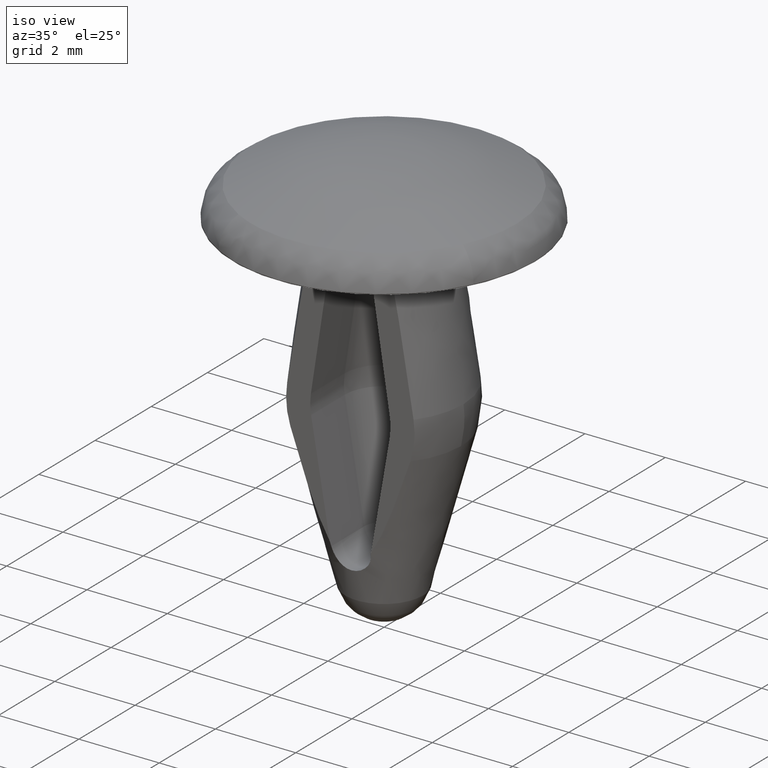
[diagram: clean part render]
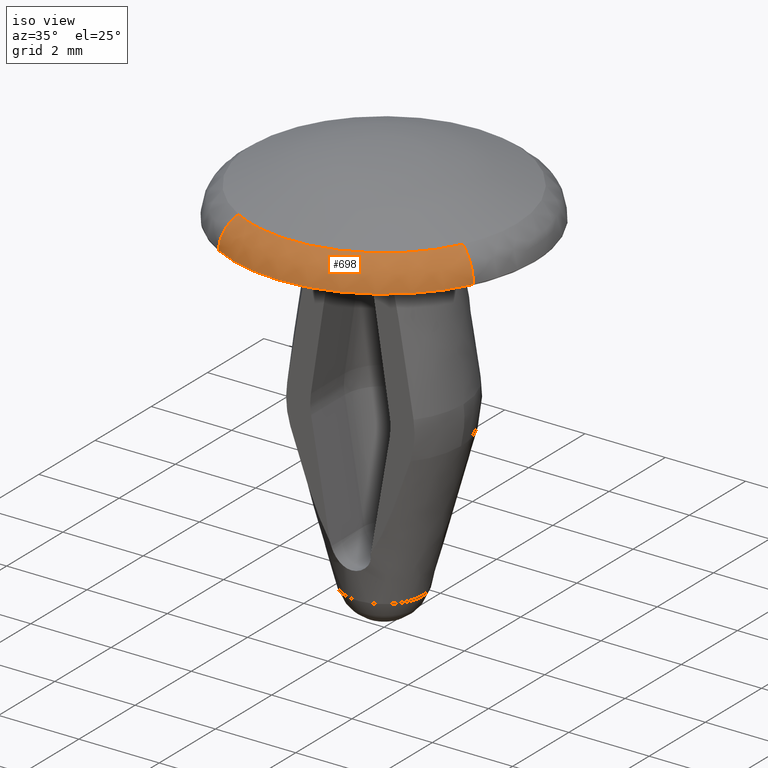
[diagram: same view with one face highlighted and labeled with its STEP entity id]
A machine part, iso view. The second image highlights one B-rep face of the part: STEP entity #698.
In plain terms, the highlighted face is a freeform B-spline surface patch.
Its self-contained STEP definition (entity closure, byte-faithful):
#109=CARTESIAN_POINT('',(3.372770148349690,-1.639183186349112,0.017876415870131));
#110=VERTEX_POINT('',#109);
#124=CARTESIAN_POINT('',(-1.829396198044957,-3.273501113917875,0.017876435724999));
#125=VERTEX_POINT('',#124);
#126=CARTESIAN_POINT('',(3.372770148349691,-1.639183186349112,0.017876415870131));
#127=CARTESIAN_POINT('',(2.346902604990190,-3.749999999999999,0.017877089325399));
#128=CARTESIAN_POINT('',(0.0,-3.750000000000000,0.017877089325399));
#129=CARTESIAN_POINT('',(-0.976754418118405,-3.750000000000000,0.017877089325399));
#130=CARTESIAN_POINT('',(-1.829396198044957,-3.273501113917875,0.017876435724999));
#138=(BOUNDED_CURVE()B_SPLINE_CURVE(2,(#126,#127,#128,#129,#130),.UNSPECIFIED.,.F.,.U.)B_SPLINE_CURVE_WITH_KNOTS((3,2,3),(0.574283252292223,0.750000000000000,0.833121380923220),.UNSPECIFIED.)CURVE()GEOMETRIC_REPRESENTATION_ITEM()RATIONAL_B_SPLINE_CURVE((0.877661440788156,0.794135024657751,1.0,0.902617244756716,0.869991202264870))REPRESENTATION_ITEM(''));
#139=EDGE_CURVE('',#110,#125,#138,.T.);
#573=CARTESIAN_POINT('',(-1.610164701237870,-2.881207994377326,0.738222806541390));
#574=VERTEX_POINT('',#573);
#575=CARTESIAN_POINT('',(-1.610164701237869,-2.881207994377326,0.738222806541390));
#576=CARTESIAN_POINT('',(-1.829783382782837,-3.274192387028218,0.518723940167616));
#577=CARTESIAN_POINT('',(-1.829396198044957,-3.273501113917875,0.017876435724999));
#585=(BOUNDED_CURVE()B_SPLINE_CURVE(2,(#575,#576,#577),.UNSPECIFIED.,.F.,.U.)B_SPLINE_CURVE_WITH_KNOTS((3,3),(-1.658961963320588,-0.352996562778486),.UNSPECIFIED.)CURVE()GEOMETRIC_REPRESENTATION_ITEM()RATIONAL_B_SPLINE_CURVE((0.887856506844297,0.751492534627179,0.885381838788322))REPRESENTATION_ITEM(''));
#586=EDGE_CURVE('',#574,#125,#585,.T.);
#620=CARTESIAN_POINT('',(2.968580994263313,-1.442746253608641,0.738222806554177));
#621=VERTEX_POINT('',#620);
#635=CARTESIAN_POINT('',(2.968580994263314,-1.442746253608641,0.738222806554177));
#636=CARTESIAN_POINT('',(3.373482547783696,-1.639529996143984,0.518723934145808));
#637=CARTESIAN_POINT('',(3.372770148349690,-1.639183186349113,0.017876415870131));
#645=(BOUNDED_CURVE()B_SPLINE_CURVE(2,(#635,#636,#637),.UNSPECIFIED.,.F.,.U.)B_SPLINE_CURVE_WITH_KNOTS((3,3),(-1.658961963410473,-0.352996532280645),.UNSPECIFIED.)CURVE()GEOMETRIC_REPRESENTATION_ITEM()RATIONAL_B_SPLINE_CURVE((0.908287711582749,0.768785751268394,0.905756103259428))REPRESENTATION_ITEM(''));
#646=EDGE_CURVE('',#621,#110,#645,.T.);
#655=CARTESIAN_POINT('',(2.934193075047282,-1.426033540795381,0.755637318828557));
#656=CARTESIAN_POINT('',(1.508159534251902,-4.360226615842662,0.755637318828557));
#657=CARTESIAN_POINT('',(-1.426033540795381,-2.934193075047282,0.755637318828557));
#658=CARTESIAN_POINT('',(-1.510008804954119,-2.893380647158370,0.755637318828557));
#659=CARTESIAN_POINT('',(-1.591512462880987,-2.847832288184003,0.755637318828557));
#660=CARTESIAN_POINT('',(3.399097789518732,-1.651979720597983,0.536403761375743));
#661=CARTESIAN_POINT('',(1.747118068920748,-5.051077510116715,0.536403761375743));
#662=CARTESIAN_POINT('',(-1.651979720597983,-3.399097789518732,0.536403761375743));
#663=CARTESIAN_POINT('',(-1.749260345108905,-3.351818885276938,0.536403761375743));
#664=CARTESIAN_POINT('',(-1.843677752692912,-3.299053671009817,0.536403761375743));
#665=CARTESIAN_POINT('',(3.371711765422607,-1.638669966293735,-0.024242542940226));
#666=CARTESIAN_POINT('',(1.733041799128872,-5.010381731716341,-0.024242542940226));
#667=CARTESIAN_POINT('',(-1.638669966293735,-3.371711765422607,-0.024242542940226));
#668=CARTESIAN_POINT('',(-1.735166815317186,-3.324813780263163,-0.024242542940226));
#669=CARTESIAN_POINT('',(-1.828823515925606,-3.272473687460276,-0.024242542940226));
#677=(BOUNDED_SURFACE()B_SPLINE_SURFACE(2,2,((#655,#660,#665),(#656,#661,#666),(#657,#662,#667),(#658,#663,#668),(#659,#664,#669)),.UNSPECIFIED.,.F.,.F.,.U.)B_SPLINE_SURFACE_WITH_KNOTS((3,2,3),(3,3),(0.0,6.211254556135591,6.459704501440458),(0.0,1.010882025605565),.UNSPECIFIED.)GEOMETRIC_REPRESENTATION_ITEM()RATIONAL_B_SPLINE_SURFACE(((0.922913797778462,0.754286138384621,0.920129243463230),(0.652598604859780,0.533360843406780,0.650629627620898),(0.922913797778462,0.754286138384621,0.920129243463230),(0.912101200373421,0.745449135013138,0.909349269110132),(0.902153609935847,0.737319091237164,0.899431691882834)))REPRESENTATION_ITEM('')SURFACE());
#678=ORIENTED_EDGE('',*,*,#139,.F.);
#679=ORIENTED_EDGE('',*,*,#646,.F.);
#680=CARTESIAN_POINT('',(2.968580994263312,-1.442746253608642,0.738222806554177));
#681=CARTESIAN_POINT('',(2.065651955906922,-3.300604470652409,0.738222806562486));
#682=CARTESIAN_POINT('',(0.0,-3.300604470652410,0.738222806562486));
#683=CARTESIAN_POINT('',(-0.859702043927507,-3.300604470652410,0.738222806562486));
#684=CARTESIAN_POINT('',(-1.610164701237869,-2.881207994377327,0.738222806541390));
#692=(BOUNDED_CURVE()B_SPLINE_CURVE(2,(#680,#681,#682,#683,#684),.UNSPECIFIED.,.F.,.U.)B_SPLINE_CURVE_WITH_KNOTS((3,2,3),(0.574283295446816,0.750000000000000,0.833121442956601),.UNSPECIFIED.)CURVE()GEOMETRIC_REPRESENTATION_ITEM()RATIONAL_B_SPLINE_CURVE((0.877661399761367,0.794135075216502,1.0,0.902617172080089,0.869991153567357))REPRESENTATION_ITEM(''));
#693=EDGE_CURVE('',#621,#574,#692,.T.);
#694=ORIENTED_EDGE('',*,*,#693,.T.);
#695=ORIENTED_EDGE('',*,*,#586,.T.);
#696=EDGE_LOOP('',(#678,#679,#694,#695));
#697=FACE_OUTER_BOUND('',#696,.T.);
#698=ADVANCED_FACE('',(#697),#677,.T.);